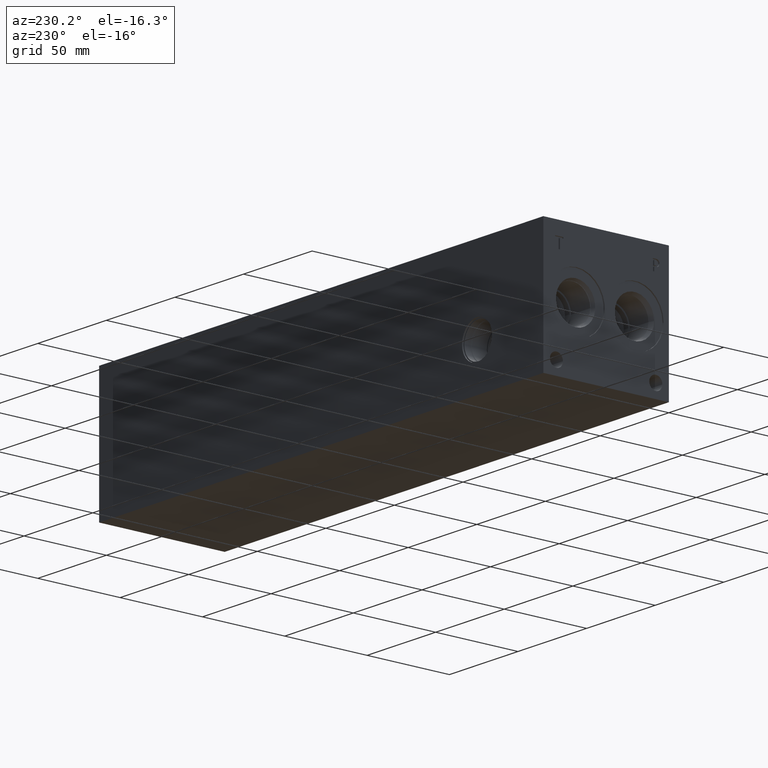
[diagram: clean part render]
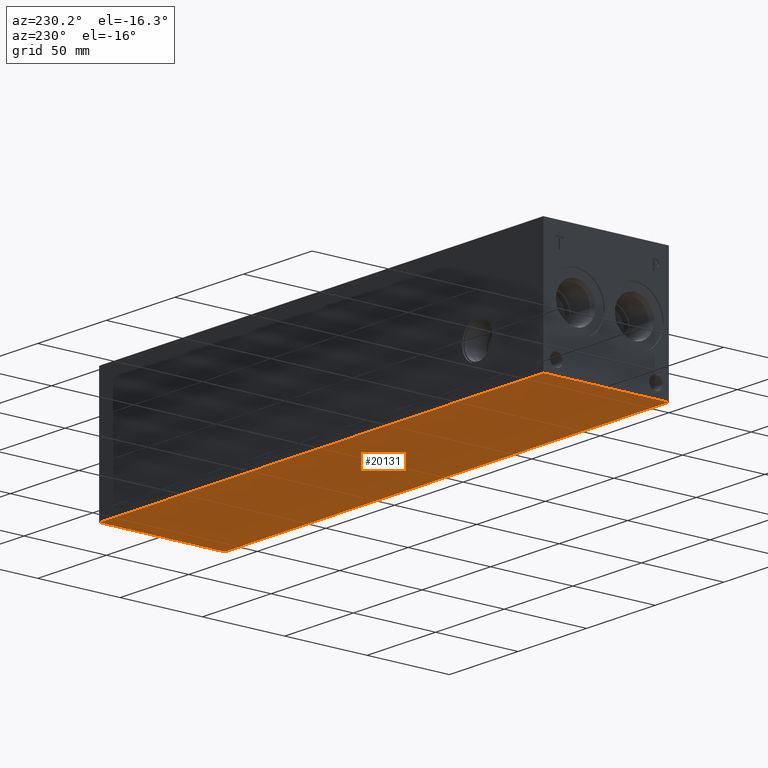
[diagram: same view with one face highlighted and labeled with its STEP entity id]
A machine part, auxiliary view. The second image highlights one B-rep face of the part: STEP entity #20131.
In plain terms, the highlighted planar face has unit normal (0, 0, 1).
Its self-contained STEP definition (entity closure, byte-faithful):
#1691=PLANE('',#21616);
#2746=FACE_OUTER_BOUND('',#4008,.T.);
#4008=EDGE_LOOP('',(#18177,#18178,#18179,#18180));
#4053=LINE('',#26532,#5693);
#5249=LINE('',#32928,#6889);
#5308=LINE('',#33200,#6948);
#5647=LINE('',#35286,#7287);
#5693=VECTOR('',#21687,10.);
#6889=VECTOR('',#23697,10.);
#6948=VECTOR('',#23810,10.);
#7287=VECTOR('',#26191,10.);
#7839=VERTEX_POINT('',#26530);
#7840=VERTEX_POINT('',#26531);
#8969=VERTEX_POINT('',#32927);
#9027=VERTEX_POINT('',#33199);
#9826=EDGE_CURVE('',#7839,#7840,#4053,.T.);
#11506=EDGE_CURVE('',#7840,#8969,#5249,.T.);
#11589=EDGE_CURVE('',#9027,#7839,#5308,.T.);
#12561=EDGE_CURVE('',#8969,#9027,#5647,.T.);
#18177=ORIENTED_EDGE('',*,*,#9826,.F.);
#18178=ORIENTED_EDGE('',*,*,#11589,.F.);
#18179=ORIENTED_EDGE('',*,*,#12561,.F.);
#18180=ORIENTED_EDGE('',*,*,#11506,.F.);
#20131=ADVANCED_FACE('',(#2746),#1691,.F.);
#21616=AXIS2_PLACEMENT_3D('',#35291,#26199,#26200);
#21687=DIRECTION('',(1.,0.,0.));
#23697=DIRECTION('',(0.,1.,0.));
#23810=DIRECTION('',(0.,-1.,0.));
#26191=DIRECTION('',(-1.,0.,0.));
#26199=DIRECTION('center_axis',(0.,0.,1.));
#26200=DIRECTION('ref_axis',(1.,0.,0.));
#26530=CARTESIAN_POINT('',(0.,0.,0.));
#26531=CARTESIAN_POINT('',(323.85,0.,0.));
#26532=CARTESIAN_POINT('',(0.,0.,0.));
#32927=CARTESIAN_POINT('',(323.85,76.2,0.));
#32928=CARTESIAN_POINT('',(323.85,0.,0.));
#33199=CARTESIAN_POINT('',(0.,76.2,0.));
#33200=CARTESIAN_POINT('',(0.,76.2,0.));
#35286=CARTESIAN_POINT('',(323.85,76.2,0.));
#35291=CARTESIAN_POINT('Origin',(161.925,38.1,0.));